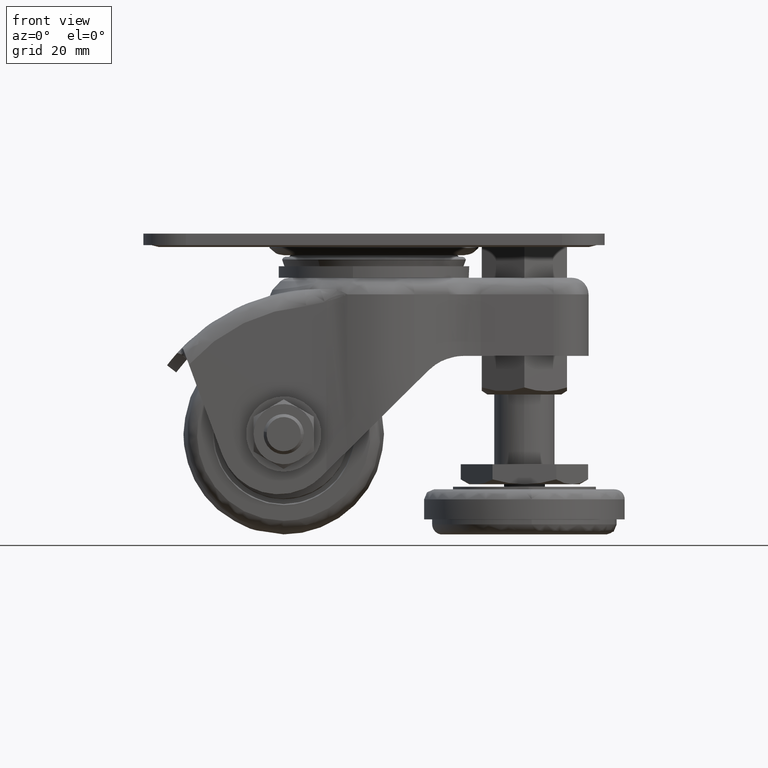
[diagram: clean part render]
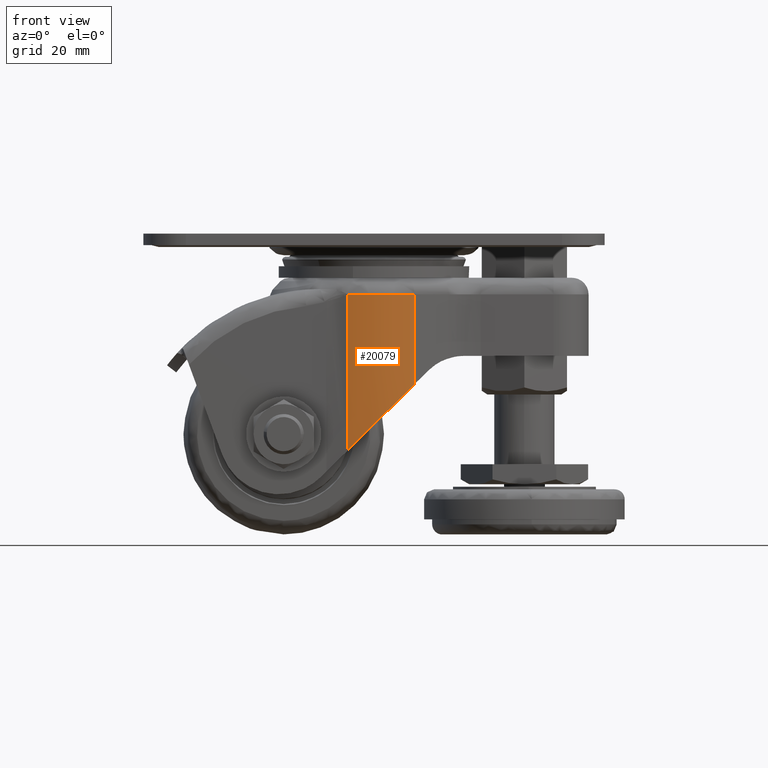
[diagram: same view with one face highlighted and labeled with its STEP entity id]
A machine part, front view. The second image highlights one B-rep face of the part: STEP entity #20079.
In plain terms, the highlighted face is a freeform B-spline surface patch.
Its self-contained STEP definition (entity closure, byte-faithful):
#19057=CARTESIAN_POINT('',(8.048855399375920,-17.365024650985600,-30.077460758186302));
#19058=VERTEX_POINT('',#19057);
#19064=CARTESIAN_POINT('',(-5.309104339891939,-18.388625981229300,-43.323447705780247));
#19065=VERTEX_POINT('',#19064);
#19066=CARTESIAN_POINT('',(-5.309104339891974,-18.388625981229300,-43.323447705780282));
#19067=CARTESIAN_POINT('',(1.561089924869178,-20.372166144816116,-36.510842687145256));
#19068=CARTESIAN_POINT('',(8.048855399375938,-17.365024650985610,-30.077460758186319));
#19076=(BOUNDED_CURVE()B_SPLINE_CURVE(2,(#19066,#19067,#19068),.UNSPECIFIED.,.F.,.U.)CURVE()GEOMETRIC_REPRESENTATION_ITEM()QUASI_UNIFORM_CURVE()RATIONAL_B_SPLINE_CURVE((1.0,0.936756237386107,1.0))REPRESENTATION_ITEM(''));
#19077=EDGE_CURVE('',#19065,#19058,#19076,.T.);
#19219=CARTESIAN_POINT('',(-5.303679414960040,-18.390191286158050,-12.121260293208261));
#19220=VERTEX_POINT('',#19219);
#19235=CARTESIAN_POINT('',(-5.303679414960040,-18.390191286158050,-12.121260293208261));
#19236=CARTESIAN_POINT('',(-5.309104339891939,-18.388625981229300,-43.323447705780247));
#19237=QUASI_UNIFORM_CURVE('',1,(#19235,#19236),.UNSPECIFIED.,.F.,.U.);
#19238=EDGE_CURVE('',#19220,#19065,#19237,.T.);
#19877=CARTESIAN_POINT('',(8.048855399375920,-17.365024650985600,-12.121327000000120));
#19878=VERTEX_POINT('',#19877);
#19924=CARTESIAN_POINT('',(8.048855399375920,-17.365024650985600,-12.121327000000120));
#19925=CARTESIAN_POINT('',(1.564008656163357,-20.370813246920960,-12.121293646604185));
#19926=CARTESIAN_POINT('',(-5.303679414960040,-18.390191286158050,-12.121260293208261));
#19934=(BOUNDED_CURVE()B_SPLINE_CURVE(2,(#19924,#19925,#19926),.UNSPECIFIED.,.F.,.U.)CURVE()GEOMETRIC_REPRESENTATION_ITEM()QUASI_UNIFORM_CURVE()RATIONAL_B_SPLINE_CURVE((1.0,0.936807849843674,1.0))REPRESENTATION_ITEM(''));
#19935=EDGE_CURVE('',#19878,#19220,#19934,.T.);
#20055=CARTESIAN_POINT('',(8.200085427672335,-17.294124821692382,-44.103502391094551));
#20056=CARTESIAN_POINT('',(8.200085427672335,-17.294124821692382,-11.321704240761100));
#20057=CARTESIAN_POINT('',(1.304641480171401,-20.563629929017068,-44.103502391094558));
#20058=CARTESIAN_POINT('',(1.304641480171401,-20.563629929017068,-11.321704240761099));
#20059=CARTESIAN_POINT('',(-5.948713106999278,-18.191782945605304,-44.103502391094551));
#20060=CARTESIAN_POINT('',(-5.948713106999278,-18.191782945605304,-11.321704240761106));
#20068=(BOUNDED_SURFACE()B_SPLINE_SURFACE(1,2,((#20055,#20057,#20059),(#20056,#20058,#20060)),.UNSPECIFIED.,.F.,.F.,.U.)B_SPLINE_SURFACE_WITH_KNOTS((2,2),(3,3),(0.0,32.781798150333451),(0.0,14.699917337340640),.UNSPECIFIED.)GEOMETRIC_REPRESENTATION_ITEM()RATIONAL_B_SPLINE_SURFACE(((1.0,0.928072061902887,0.998245253936246),(1.0,0.928072061902887,0.998245253936246)))REPRESENTATION_ITEM('')SURFACE());
#20069=ORIENTED_EDGE('',*,*,#19238,.T.);
#20070=ORIENTED_EDGE('',*,*,#19077,.T.);
#20071=CARTESIAN_POINT('',(8.048855399375920,-17.365024650985600,-30.077460758186302));
#20072=CARTESIAN_POINT('',(8.048855399375920,-17.365024650985600,-12.121327000000120));
#20073=QUASI_UNIFORM_CURVE('',1,(#20071,#20072),.UNSPECIFIED.,.F.,.U.);
#20074=EDGE_CURVE('',#19058,#19878,#20073,.T.);
#20075=ORIENTED_EDGE('',*,*,#20074,.T.);
#20076=ORIENTED_EDGE('',*,*,#19935,.T.);
#20077=EDGE_LOOP('',(#20069,#20070,#20075,#20076));
#20078=FACE_OUTER_BOUND('',#20077,.T.);
#20079=ADVANCED_FACE('',(#20078),#20068,.T.);